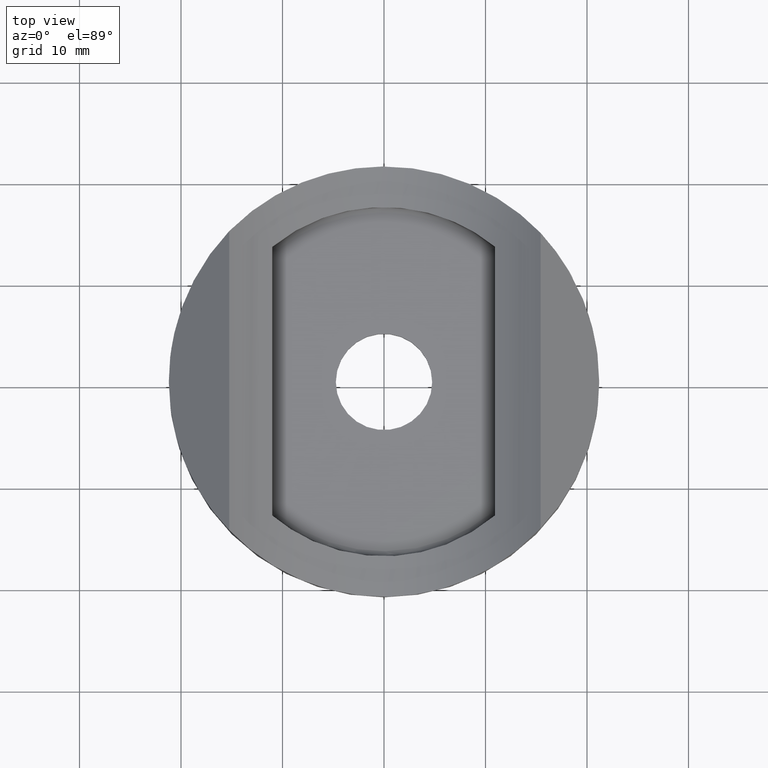
[diagram: clean part render]
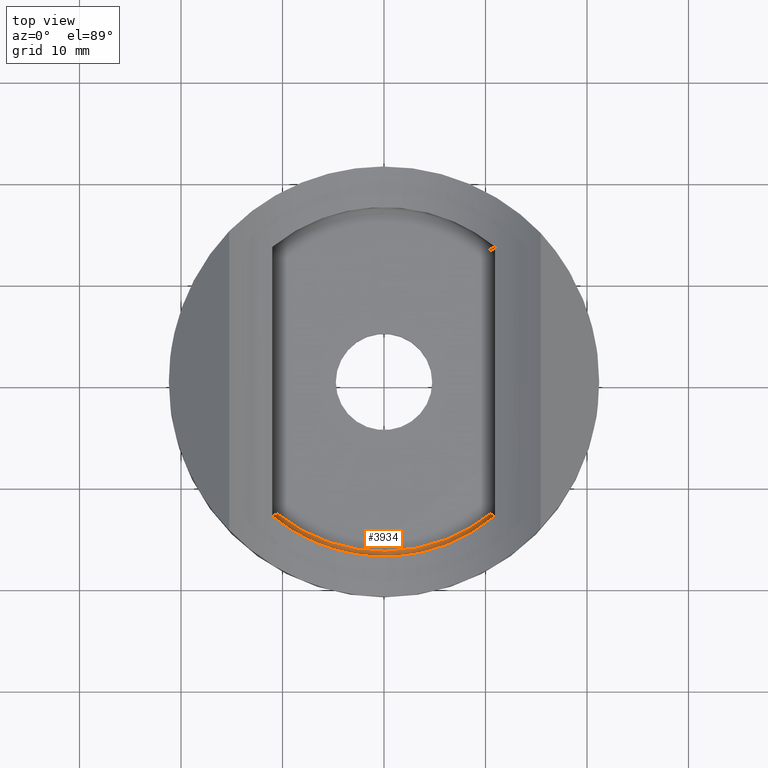
[diagram: same view with one face highlighted and labeled with its STEP entity id]
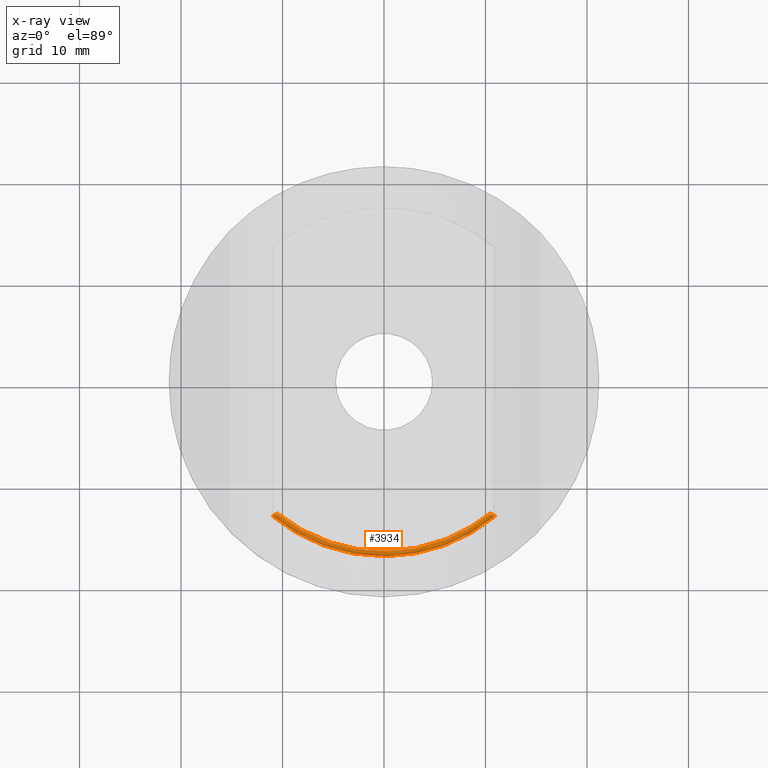
[diagram: x-ray of the same camera — body ghosted, the highlighted face saturated]
A machine part, top view. The second image highlights one B-rep face of the part: STEP entity #3934.
The next image is the same camera in x-ray: the body ghosted, the highlighted face saturated — about 0% of this face is hidden behind the body in this view.
In plain terms, the highlighted face is a freeform B-spline surface patch.
Its self-contained STEP definition (entity closure, byte-faithful):
#387 = CARTESIAN_POINT ( 'NONE',  ( 3.999365930745047315, -16.84508865569384994, 2.300000000000419487 ) ) ;
#533 = CARTESIAN_POINT ( 'NONE',  ( 10.96183220482173226, -13.23932022424111921, 2.802096421857837250 ) ) ;
#537 = DIRECTION ( 'NONE',  ( -0.006568024764096663110, -0.000000000000000000, 0.9999784302927229307 ) ) ;
#838 = LINE ( 'NONE', #2900, #8980 ) ;
#1127 = CARTESIAN_POINT ( 'NONE',  ( -4.116774642800247186, -18.14602091266336004, 2.299999999999996714 ) ) ;
#1174 = CARTESIAN_POINT ( 'NONE',  ( 10.46183518938314805, -13.00229210562506488, 2.299999999999999822 ) ) ;
#1583 = CARTESIAN_POINT ( 'NONE',  ( 3.998545309761948996, -16.84457086667754666, 2.800766941868373827 ) ) ;
#1793 = CARTESIAN_POINT ( 'NONE',  ( -7.807269766023155810, -15.46467192386216283, 2.299999999999997602 ) ) ;
#2070 = VERTEX_POINT ( 'NONE', #533 ) ;
#2235 = ORIENTED_EDGE ( 'NONE', *, *, #13925, .T. ) ;
#2427 = CARTESIAN_POINT ( 'NONE',  ( 4.079992910750119606, -18.14602091266336004, 2.299999999999996714 ) ) ;
#2566 = EDGE_LOOP ( 'NONE', ( #14519, #3544, #14825, #14903, #2235 ) ) ;
#2762 = EDGE_CURVE ( 'NONE', #9953, #15640, #12669, .T. ) ;
#2900 = CARTESIAN_POINT ( 'NONE',  ( -10.71170780062539052, -13.23932022424112276, -40.88340976485886102 ) ) ;
#2901 = CARTESIAN_POINT ( 'NONE',  ( -11.10687693082378047, -13.14602405685217335, 2.299999999999996714 ) ) ;
#3016 = CARTESIAN_POINT ( 'NONE',  ( -2.027034715766909745, -17.20000587579017903, 2.799616495507971869 ) ) ;
#3180 = CARTESIAN_POINT ( 'NONE',  ( 10.46183518938314805, -13.00229210562506488, 2.299999999999999822 ) ) ;
#3288 = CARTESIAN_POINT ( 'NONE',  ( 7.773206002764822209, -15.46683335920736724, 2.299999999999573941 ) ) ;
#3355 = CARTESIAN_POINT ( 'NONE',  ( -10.62233112453623818, -13.06146998306108031, 2.299999999999996270 ) ) ;
#3544 = ORIENTED_EDGE ( 'NONE', *, *, #11156, .F. ) ;
#3934 = ADVANCED_FACE ( 'NONE', ( #14989 ), #7800, .F. ) ;
#4213 = CARTESIAN_POINT ( 'NONE',  ( -9.572619972169635005, -14.44285382901900938, 2.798175838997011500 ) ) ;
#4257 = CARTESIAN_POINT ( 'NONE',  ( 7.771888680251648474, -15.46572658275370493, 2.801487375276206837 ) ) ;
#4309 = CARTESIAN_POINT ( 'NONE',  ( 9.535922740316083335, -14.44279793240899679, 2.801824177136036376 ) ) ;
#4425 = CARTESIAN_POINT ( 'NONE',  ( 10.58626775622546212, -13.06181360764399990, 2.299999999999996714 ) ) ;
#5027 = CARTESIAN_POINT ( 'NONE',  ( 10.46183518938314805, -13.00229210562506488, 2.299999999999999822 ) ) ;
#5208 = CARTESIAN_POINT ( 'NONE',  ( 1.991124275576795499, -17.20037779267152089, 2.299999999999997158 ) ) ;
#5410 = CARTESIAN_POINT ( 'NONE',  ( -7.808579927319089009, -15.46577215898538782, 2.798512642000216655 ) ) ;
#6174 = VERTEX_POINT ( 'NONE', #8550 ) ;
#6417 = CARTESIAN_POINT ( 'NONE',  ( 3.881778800268707919, -16.35490310892470589, 2.299999999999996714 ) ) ;
#6620 = CARTESIAN_POINT ( 'NONE',  ( -4.035228489731183643, -16.84459436719922820, 2.799233076947483578 ) ) ;
#6767 = CARTESIAN_POINT ( 'NONE',  ( 10.71259760876080236, -13.12178025498629275, 2.348165017811662203 ) ) ;
#6801 = CARTESIAN_POINT ( 'NONE',  ( -10.99861393687186073, -13.23932022424112276, 2.797903578142156622 ) ) ;
#6821 = CARTESIAN_POINT ( 'NONE',  ( 7.545436550870621595, -15.01614150767423972, 2.299999999999996714 ) ) ;
#7097 = CARTESIAN_POINT ( 'NONE',  ( -10.93616810521117166, -13.21002617276389124, 2.525524623708064187 ) ) ;
#7433 = EDGE_CURVE ( 'NONE', #6174, #13098, #838, .T. ) ;
#7617 = CARTESIAN_POINT ( 'NONE',  ( -1.968646351878268863, -16.70000570497912662, 2.299999999999996714 ) ) ;
#7800 =( BOUNDED_SURFACE ( )  B_SPLINE_SURFACE ( 3, 2, ( 
 ( #10220, #2901, #11376 ),
 ( #12608, #11424, #4213 ),
 ( #12662, #1793, #5410 ),
 ( #13872, #10274, #6620 ),
 ( #7617, #15086, #3016 ),
 ( #11484, #5208, #13665 ),
 ( #6417, #387, #1583 ),
 ( #6821, #3288, #4257 ),
 ( #7884, #10374, #4309 ),
 ( #7945, #10532, #13969 ) ),
 .UNSPECIFIED., .F., .F., .F. ) 
 B_SPLINE_SURFACE_WITH_KNOTS ( ( 4, 2, 2, 2, 4 ),
 ( 3, 3 ),
 ( 0.8701062199686665499, 1.220452736019361550, 1.570799252070056662, 1.921145768120751551, 2.271492284171446663 ),
 ( 0.000000000000000000, 1.000000000000000000 ),
 .UNSPECIFIED. ) 
 GEOMETRIC_REPRESENTATION_ITEM ( )  RATIONAL_B_SPLINE_SURFACE ( (
 ( 1.000000000000000000, 0.7086023932603985331, 1.000000000000000000),
 ( 1.000000000000000000, 0.7083956304481054955, 1.000000000000000000),
 ( 1.000000000000000000, 0.7081577668374458012, 1.000000000000000000),
 ( 1.000000000000000000, 0.7076489156247426360, 1.000000000000000000),
 ( 1.000000000000000000, 0.7073779598161111792, 1.000000000000000000),
 ( 1.000000000000000000, 0.7068355889711437356, 1.000000000000000000),
 ( 1.000000000000000000, 0.7065643092855666829, 1.000000000000000000),
 ( 1.000000000000000000, 0.7060543107640298022, 1.000000000000000000),
 ( 1.000000000000000000, 0.7058156305559618593, 1.000000000000000000),
 ( 1.000000000000000000, 0.7056079886020917291, 1.000000000000000000) ) ) 
 REPRESENTATION_ITEM ( '' )  SURFACE ( )  );
#7884 = CARTESIAN_POINT ( 'NONE',  ( 9.258192700114260987, -14.02294915429039968, 2.299999999999996714 ) ) ;
#7945 = CARTESIAN_POINT ( 'NONE',  ( 10.74916352695094623, -12.76537402248377617, 2.299999999999996714 ) ) ;
#8084 = CARTESIAN_POINT ( 'NONE',  ( 10.96183220482173226, -13.23932022424111921, 2.802096421857837250 ) ) ;
#8119 = CARTESIAN_POINT ( 'NONE',  ( -10.49861692143327652, -13.00229210562507376, 2.299999999999999822 ) ) ;
#8157 = CARTESIAN_POINT ( 'NONE',  ( 10.90145270505863451, -13.21099947074382186, 2.528387993614822360 ) ) ;
#8320 = CARTESIAN_POINT ( 'NONE',  ( -10.99769480465911009, -13.23889023058049297, 2.657966166157153420 ) ) ;
#8550 = CARTESIAN_POINT ( 'NONE',  ( -10.99860613657963881, -13.23932022424112276, 2.796715987617944155 ) ) ;
#8890 = EDGE_CURVE ( 'NONE', #15640, #2070, #12673, .T. ) ;
#8980 = VECTOR ( 'NONE', #537, 1000.000000000000227 ) ;
#9557 = CARTESIAN_POINT ( 'NONE',  ( -10.99860613657963881, -13.23932022424112276, 2.796715987617944155 ) ) ;
#9854 =( BOUNDED_CURVE ( )  B_SPLINE_CURVE ( 3, ( #8084, #11573, #14059, #6801 ),
 .UNSPECIFIED., .F., .F. ) 
 B_SPLINE_CURVE_WITH_KNOTS ( ( 4, 4 ),
 ( 4.020007486587330092, 5.404770474182049256 ),
 .UNSPECIFIED. ) 
 CURVE ( )  GEOMETRIC_REPRESENTATION_ITEM ( )  RATIONAL_B_SPLINE_CURVE ( ( 1.000000000000000000, 0.8464852800093458640, 0.8464852800093458640, 1.000000000000000000 ) ) 
 REPRESENTATION_ITEM ( '' )  );
#9953 = VERTEX_POINT ( 'NONE', #14106 ) ;
#10220 = CARTESIAN_POINT ( 'NONE',  ( -10.78587057274277328, -12.76543701702529532, 2.299999999999996714 ) ) ;
#10274 = CARTESIAN_POINT ( 'NONE',  ( -4.034410699379669119, -16.84407778877933737, 2.299999999999997602 ) ) ;
#10374 = CARTESIAN_POINT ( 'NONE',  ( 9.537363768662256547, -14.44397750631742561, 2.300000000001265033 ) ) ;
#10375 = CARTESIAN_POINT ( 'NONE',  ( 10.96183220482173226, -13.23932022424111921, 2.802096421857837250 ) ) ;
#10532 = CARTESIAN_POINT ( 'NONE',  ( 11.07290243557759446, -13.14919623402889926, 2.299999999999996270 ) ) ;
#11156 = EDGE_CURVE ( 'NONE', #2070, #13098, #9854, .T. ) ;
#11376 = CARTESIAN_POINT ( 'NONE',  ( -11.10823629756182918, -13.14763573010988473, 2.797882648265632266 ) ) ;
#11424 = CARTESIAN_POINT ( 'NONE',  ( -9.571189455189344386, -14.44168259495176798, 2.299999999999997158 ) ) ;
#11484 = CARTESIAN_POINT ( 'NONE',  ( 1.931962326125952423, -16.69999429487796405, 2.299999999999996714 ) ) ;
#11573 = CARTESIAN_POINT ( 'NONE',  ( 4.305457927788008732, -18.75965688134003528, 2.800825539796672370 ) ) ;
#11926 = CARTESIAN_POINT ( 'NONE',  ( -10.99861393687186073, -13.23932022424112276, 2.797903578142156622 ) ) ;
#12608 = CARTESIAN_POINT ( 'NONE',  ( -9.294892388262814720, -14.02300342599520633, 2.299999999999996714 ) ) ;
#12662 = CARTESIAN_POINT ( 'NONE',  ( -7.582130428204826522, -15.01618575901489727, 2.299999999999996714 ) ) ;
#12669 =( BOUNDED_CURVE ( )  B_SPLINE_CURVE ( 3, ( #14560, #1127, #2427, #1174 ),
 .UNSPECIFIED., .F., .F. ) 
 B_SPLINE_CURVE_WITH_KNOTS ( ( 4, 4 ),
 ( 0.8924004280671213873, 2.249192225522672395 ),
 .UNSPECIFIED. ) 
 CURVE ( )  GEOMETRIC_REPRESENTATION_ITEM ( )  RATIONAL_B_SPLINE_CURVE ( ( 1.000000000000000000, 0.8523869104041944533, 0.8523869104041944533, 1.000000000000000000 ) ) 
 REPRESENTATION_ITEM ( '' )  );
#12673 = B_SPLINE_CURVE_WITH_KNOTS ( 'NONE', 3,
 ( #3180, #4425, #6767, #8157, #15346, #10375 ),
 .UNSPECIFIED., .F., .F.,
 ( 4, 2, 4 ),
 ( -5.068332799654428989E-06, 0.0004087354164826910766, 0.0008225391657650365238 ),
 .UNSPECIFIED. ) ;
#13098 = VERTEX_POINT ( 'NONE', #11926 ) ;
#13407 = B_SPLINE_CURVE_WITH_KNOTS ( 'NONE', 3,
 ( #8119, #3355, #14350, #7097, #8320, #9557 ),
 .UNSPECIFIED., .F., .F.,
 ( 4, 2, 4 ),
 ( -5.068332799658114429E-06, 0.0004063464791136934097, 0.0008177612910270448763 ),
 .UNSPECIFIED. ) ;
#13665 = CARTESIAN_POINT ( 'NONE',  ( 1.990353615226654993, -17.19999412406263417, 2.800383523705301414 ) ) ;
#13872 = CARTESIAN_POINT ( 'NONE',  ( -3.918464845004487440, -16.35492592629226039, 2.299999999999996714 ) ) ;
#13925 = EDGE_CURVE ( 'NONE', #9953, #6174, #13407, .T. ) ;
#13969 = CARTESIAN_POINT ( 'NONE',  ( 11.07153148778905738, -13.14757084950424826, 2.802117366420907363 ) ) ;
#14059 = CARTESIAN_POINT ( 'NONE',  ( -4.342239659838136312, -18.75965688134003528, 2.799174460203321502 ) ) ;
#14106 = CARTESIAN_POINT ( 'NONE',  ( -10.49861692143327652, -13.00229210562507376, 2.299999999999999822 ) ) ;
#14350 = CARTESIAN_POINT ( 'NONE',  ( -10.74780061909984319, -13.12103149481431252, 2.347567402331290687 ) ) ;
#14519 = ORIENTED_EDGE ( 'NONE', *, *, #7433, .T. ) ;
#14560 = CARTESIAN_POINT ( 'NONE',  ( -10.49861692143327652, -13.00229210562507376, 2.299999999999999822 ) ) ;
#14825 = ORIENTED_EDGE ( 'NONE', *, *, #8890, .F. ) ;
#14903 = ORIENTED_EDGE ( 'NONE', *, *, #2762, .F. ) ;
#14989 = FACE_OUTER_BOUND ( 'NONE', #2566, .T. ) ;
#15086 = CARTESIAN_POINT ( 'NONE',  ( -2.026264650794126876, -17.19962251605380743, 2.299999999999996714 ) ) ;
#15346 = CARTESIAN_POINT ( 'NONE',  ( 10.96241641506158260, -13.23959652978913226, 2.662426152780006383 ) ) ;
#15640 = VERTEX_POINT ( 'NONE', #5027 ) ;